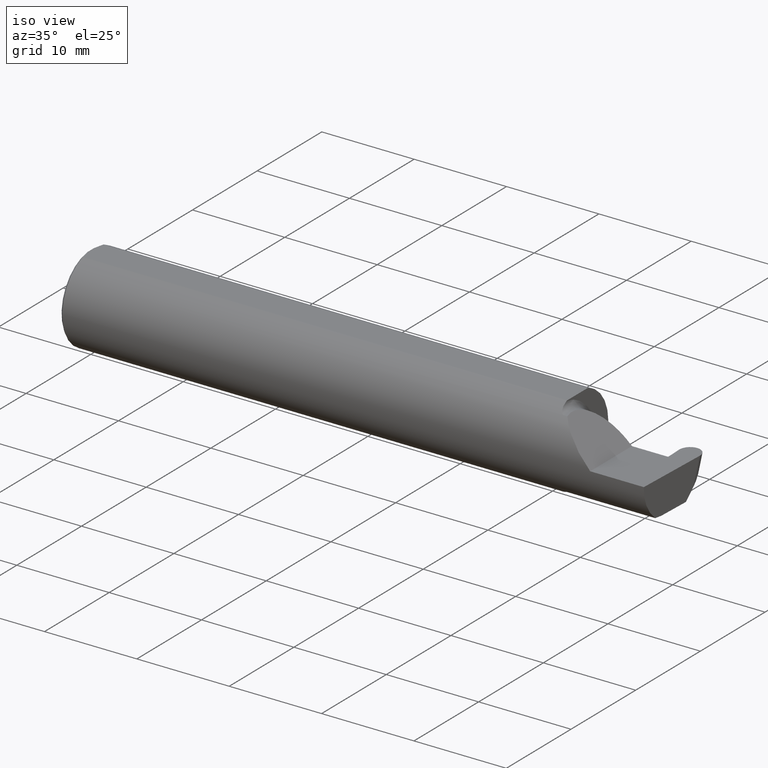
[diagram: clean part render]
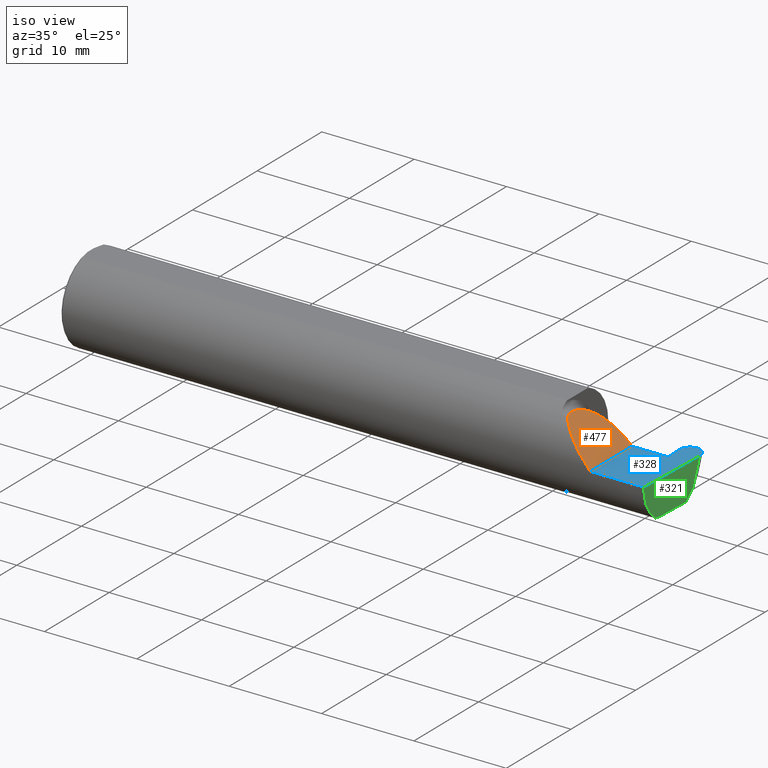
[diagram: same view with three faces highlighted in distinct colors, each labeled with its STEP entity id]
A machine part, iso view with three faces highlighted in distinct colors.
Their STEP definitions:

[orange] entity #477 — the highlighted planar face has unit normal (-0.7071, 0, -0.7071).
#19 = CARTESIAN_POINT ( 'NONE',  ( 2.260000000000000231, 0.06665000000000002867, 5.204748896376251932E-17 ) ) ;
#32 = ORIENTED_EDGE ( 'NONE', *, *, #543, .F. ) ;
#35 = AXIS2_PLACEMENT_3D ( 'NONE', #619, #74, #131 ) ;
#64 =( BOUNDED_CURVE ( )  B_SPLINE_CURVE ( 3, ( #124, #484, #375, #558 ),
 .UNSPECIFIED., .F., .T. ) 
 B_SPLINE_CURVE_WITH_KNOTS ( ( 4, 4 ),
 ( 6.055147272130142255, 7.853981633974482790 ),
 .UNSPECIFIED. ) 
 CURVE ( )  GEOMETRIC_REPRESENTATION_ITEM ( )  RATIONAL_B_SPLINE_CURVE ( ( 1.000000000000000000, 0.7480442670255268434, 0.7480442670255268434, 1.000000000000000000 ) ) 
 REPRESENTATION_ITEM ( '' )  );
#74 = DIRECTION ( 'NONE',  ( -0.7071067811865441310, 0.000000000000000000, -0.7071067811865510144 ) ) ;
#124 = CARTESIAN_POINT ( 'NONE',  ( 2.113883229301068312, -0.1172600179964006784, 0.1461167706989302539 ) ) ;
#127 = CARTESIAN_POINT ( 'NONE',  ( 2.202189699843949189, -0.1873500000000000998, 0.05781030015605102129 ) ) ;
#131 = DIRECTION ( 'NONE',  ( -0.7071067811865509034, 0.000000000000000000, 0.7071067811865440200 ) ) ;
#175 = CARTESIAN_POINT ( 'NONE',  ( 2.260000000000000231, -0.1873499999999999888, 2.939152317953647352E-17 ) ) ;
#250 = VERTEX_POINT ( 'NONE', #574 ) ;
#261 = VERTEX_POINT ( 'NONE', #19 ) ;
#266 = EDGE_LOOP ( 'NONE', ( #32, #310, #283 ) ) ;
#283 = ORIENTED_EDGE ( 'NONE', *, *, #487, .T. ) ;
#310 = ORIENTED_EDGE ( 'NONE', *, *, #412, .F. ) ;
#317 = VECTOR ( 'NONE', #488, 39.37007874015748143 ) ;
#326 = FACE_OUTER_BOUND ( 'NONE', #266, .T. ) ;
#338 = CARTESIAN_POINT ( 'NONE',  ( 2.150065971957465738, -0.1623470442677541759, 0.1099340280425336741 ) ) ;
#375 = CARTESIAN_POINT ( 'NONE',  ( 2.155331797197862720, 0.06665000000000004254, 0.1046682028021360955 ) ) ;
#377 = CARTESIAN_POINT ( 'NONE',  ( 2.113883229301068312, -0.1172600179964006784, 0.1461167706989302539 ) ) ;
#390 =( BOUNDED_CURVE ( )  B_SPLINE_CURVE ( 3, ( #175, #127, #338, #377 ),
 .UNSPECIFIED., .F., .T. ) 
 B_SPLINE_CURVE_WITH_KNOTS ( ( 4, 4 ),
 ( 4.712388980384688786, 5.606916381293136631 ),
 .UNSPECIFIED. ) 
 CURVE ( )  GEOMETRIC_REPRESENTATION_ITEM ( )  RATIONAL_B_SPLINE_CURVE ( ( 1.000000000000000000, 0.9344226172588802060, 0.9344226172588802060, 1.000000000000000000 ) ) 
 REPRESENTATION_ITEM ( '' )  );
#405 = VERTEX_POINT ( 'NONE', #526 ) ;
#412 = EDGE_CURVE ( 'NONE', #405, #250, #390, .T. ) ;
#445 = CARTESIAN_POINT ( 'NONE',  ( 2.260000000000000231, -0.2500000000000000555, 2.939152317953647352E-17 ) ) ;
#477 = ADVANCED_FACE ( 'NONE', ( #326 ), #707, .F. ) ;
#484 = CARTESIAN_POINT ( 'NONE',  ( 2.090221225029926355, -0.01530148607434163137, 0.1697787749700727100 ) ) ;
#487 = EDGE_CURVE ( 'NONE', #405, #261, #655, .T. ) ;
#488 = DIRECTION ( 'NONE',  ( -0.000000000000000000, 1.000000000000000000, -0.000000000000000000 ) ) ;
#526 = CARTESIAN_POINT ( 'NONE',  ( 2.260000000000000231, -0.1873499999999999888, 2.939152317953647352E-17 ) ) ;
#543 = EDGE_CURVE ( 'NONE', #250, #261, #64, .T. ) ;
#558 = CARTESIAN_POINT ( 'NONE',  ( 2.260000000000000231, 0.06665000000000002867, 5.204748896376251932E-17 ) ) ;
#574 = CARTESIAN_POINT ( 'NONE',  ( 2.113883229301068312, -0.1172600179964006784, 0.1461167706989302539 ) ) ;
#619 = CARTESIAN_POINT ( 'NONE',  ( 2.260000000000000231, -0.2500000000000000555, 2.939152317953647352E-17 ) ) ;
#655 = LINE ( 'NONE', #445, #317 ) ;
#707 = PLANE ( 'NONE',  #35 ) ;

[blue] entity #328 — the highlighted planar face has unit normal (-0, 0, -1).
#4 = VERTEX_POINT ( 'NONE', #648 ) ;
#5 = VECTOR ( 'NONE', #589, 39.37007874015748143 ) ;
#14 = CARTESIAN_POINT ( 'NONE',  ( 2.499906297085412898, 0.1370998259008695541, 0.000000000000000000 ) ) ;
#19 = CARTESIAN_POINT ( 'NONE',  ( 2.260000000000000231, 0.06665000000000002867, 5.204748896376251932E-17 ) ) ;
#34 = EDGE_CURVE ( 'NONE', #684, #104, #383, .T. ) ;
#45 = EDGE_CURVE ( 'NONE', #46, #203, #651, .T. ) ;
#46 = VERTEX_POINT ( 'NONE', #14 ) ;
#49 = VECTOR ( 'NONE', #444, 39.37007874015748143 ) ;
#75 = CARTESIAN_POINT ( 'NONE',  ( 2.456309424548497322, 0.1846500000000000363, 0.000000000000000000 ) ) ;
#79 = CARTESIAN_POINT ( 'NONE',  ( 2.410932386210230760, 0.1647912748130948291, 1.110789957736176039E-17 ) ) ;
#82 = CARTESIAN_POINT ( 'NONE',  ( 2.075000000000000178, 0.06665000000000002867, 5.204748896376251932E-17 ) ) ;
#96 = CARTESIAN_POINT ( 'NONE',  ( -0.001039370078740541395, 0.1846500000000000363, 0.000000000000000000 ) ) ;
#104 = VERTEX_POINT ( 'NONE', #556 ) ;
#107 = VECTOR ( 'NONE', #508, 39.37007874015748143 ) ;
#114 = DIRECTION ( 'NONE',  ( -1.000000000000000000, -0.000000000000000000, -0.000000000000000000 ) ) ;
#133 = VERTEX_POINT ( 'NONE', #603 ) ;
#134 = CARTESIAN_POINT ( 'NONE',  ( 2.414359555045604289, 0.06664999999999991764, 0.000000000000000000 ) ) ;
#139 = EDGE_CURVE ( 'NONE', #4, #405, #438, .T. ) ;
#141 = LINE ( 'NONE', #459, #510 ) ;
#155 = EDGE_CURVE ( 'NONE', #133, #104, #669, .T. ) ;
#169 = ORIENTED_EDGE ( 'NONE', *, *, #34, .F. ) ;
#171 = CARTESIAN_POINT ( 'NONE',  ( 2.411832552795360574, 0.1390138764844879860, 0.000000000000000000 ) ) ;
#174 = CARTESIAN_POINT ( 'NONE',  ( 3.749399456654646757E-32, -0.1873499999999999610, 3.061616997868383634E-16 ) ) ;
#183 = ORIENTED_EDGE ( 'NONE', *, *, #155, .T. ) ;
#193 = EDGE_CURVE ( 'NONE', #46, #4, #141, .T. ) ;
#196 = LINE ( 'NONE', #82, #107 ) ;
#203 = VERTEX_POINT ( 'NONE', #75 ) ;
#241 = LINE ( 'NONE', #134, #462 ) ;
#253 = CARTESIAN_POINT ( 'NONE',  ( 2.405238904245578624, 0.06664999999999991764, 0.000000000000000000 ) ) ;
#254 = ORIENTED_EDGE ( 'NONE', *, *, #650, .F. ) ;
#261 = VERTEX_POINT ( 'NONE', #19 ) ;
#272 = CARTESIAN_POINT ( 'NONE',  ( 2.499906297085412898, 0.1370998259008695541, 0.000000000000000000 ) ) ;
#275 = CARTESIAN_POINT ( 'NONE',  ( 2.500873303789769242, 0.1647912748130947180, 3.031548046095857169E-18 ) ) ;
#305 = DIRECTION ( 'NONE',  ( 1.000000000000000000, -0.000000000000000000, -0.000000000000000000 ) ) ;
#309 = DIRECTION ( 'NONE',  ( -1.224646799147353947E-16, 0.000000000000000000, -1.000000000000000000 ) ) ;
#312 = PLANE ( 'NONE',  #497 ) ;
#317 = VECTOR ( 'NONE', #488, 39.37007874015748143 ) ;
#328 = ADVANCED_FACE ( 'NONE', ( #428 ), #312, .F. ) ;
#340 = EDGE_LOOP ( 'NONE', ( #473, #183, #169, #254, #516, #628, #358, #350, #653 ) ) ;
#346 = CARTESIAN_POINT ( 'NONE',  ( 2.411899392914586659, 0.1370998259008695541, 0.000000000000000000 ) ) ;
#347 = VERTEX_POINT ( 'NONE', #253 ) ;
#350 = ORIENTED_EDGE ( 'NONE', *, *, #193, .F. ) ;
#358 = ORIENTED_EDGE ( 'NONE', *, *, #139, .F. ) ;
#361 = DIRECTION ( 'NONE',  ( -1.000000000000000000, 0.000000000000000000, 1.224646799147353947E-16 ) ) ;
#365 = LINE ( 'NONE', #96, #5 ) ;
#369 = EDGE_CURVE ( 'NONE', #133, #203, #365, .T. ) ;
#383 = LINE ( 'NONE', #171, #49 ) ;
#405 = VERTEX_POINT ( 'NONE', #526 ) ;
#428 = FACE_OUTER_BOUND ( 'NONE', #340, .T. ) ;
#438 = LINE ( 'NONE', #174, #675 ) ;
#444 = DIRECTION ( 'NONE',  ( -0.03489949670249400948, 0.9993908270190959842, -0.000000000000000000 ) ) ;
#445 = CARTESIAN_POINT ( 'NONE',  ( 2.260000000000000231, -0.2500000000000000555, 2.939152317953647352E-17 ) ) ;
#459 = CARTESIAN_POINT ( 'NONE',  ( 2.499973137204639428, 0.1390138764844880415, 0.000000000000000000 ) ) ;
#462 = VECTOR ( 'NONE', #305, 39.37007874015748143 ) ;
#463 = DIRECTION ( 'NONE',  ( -0.03489949670249319069, -0.9993908270190959842, 0.000000000000000000 ) ) ;
#473 = ORIENTED_EDGE ( 'NONE', *, *, #369, .F. ) ;
#487 = EDGE_CURVE ( 'NONE', #405, #261, #655, .T. ) ;
#488 = DIRECTION ( 'NONE',  ( -0.000000000000000000, 1.000000000000000000, -0.000000000000000000 ) ) ;
#490 = CARTESIAN_POINT ( 'NONE',  ( 2.456309424548497322, 0.1846500000000000363, 0.000000000000000000 ) ) ;
#497 = AXIS2_PLACEMENT_3D ( 'NONE', #584, #309, #361 ) ;
#508 = DIRECTION ( 'NONE',  ( 1.000000000000000000, 5.069406624455083742E-17, 0.000000000000000000 ) ) ;
#510 = VECTOR ( 'NONE', #463, 39.37007874015748854 ) ;
#516 = ORIENTED_EDGE ( 'NONE', *, *, #614, .F. ) ;
#517 = CARTESIAN_POINT ( 'NONE',  ( 2.414359555045604289, 0.06664999999999991764, 0.000000000000000000 ) ) ;
#526 = CARTESIAN_POINT ( 'NONE',  ( 2.260000000000000231, -0.1873499999999999888, 2.939152317953647352E-17 ) ) ;
#549 = CARTESIAN_POINT ( 'NONE',  ( 2.455496265451502236, 0.1846500000000000363, 0.000000000000000000 ) ) ;
#554 = CARTESIAN_POINT ( 'NONE',  ( 2.482665624698748186, 0.1846499999999999253, 5.261345637967953601E-18 ) ) ;
#556 = CARTESIAN_POINT ( 'NONE',  ( 2.411899392914586659, 0.1370998259008695541, 0.000000000000000000 ) ) ;
#563 = CARTESIAN_POINT ( 'NONE',  ( 2.429140065301251372, 0.1846500000000001473, 8.878101985489642774E-18 ) ) ;
#584 = CARTESIAN_POINT ( 'NONE',  ( 2.500000000000000000, -0.2500000000000000555, 0.000000000000000000 ) ) ;
#589 = DIRECTION ( 'NONE',  ( 1.000000000000000000, -0.000000000000000000, -0.000000000000000000 ) ) ;
#603 = CARTESIAN_POINT ( 'NONE',  ( 2.455496265451502236, 0.1846500000000000363, 0.000000000000000000 ) ) ;
#614 = EDGE_CURVE ( 'NONE', #261, #347, #196, .T. ) ;
#628 = ORIENTED_EDGE ( 'NONE', *, *, #487, .F. ) ;
#648 = CARTESIAN_POINT ( 'NONE',  ( 2.488576259503493926, -0.1873499999999999888, 0.000000000000000000 ) ) ;
#650 = EDGE_CURVE ( 'NONE', #347, #684, #241, .T. ) ;
#651 =( BOUNDED_CURVE ( )  B_SPLINE_CURVE ( 3, ( #272, #275, #554, #490 ),
 .UNSPECIFIED., .F., .F. ) 
 B_SPLINE_CURVE_WITH_KNOTS ( ( 4, 4 ),
 ( 1.627103621474502049, 3.225696776093220475 ),
 .UNSPECIFIED. ) 
 CURVE ( )  GEOMETRIC_REPRESENTATION_ITEM ( )  RATIONAL_B_SPLINE_CURVE ( ( 1.000000000000000000, 0.7981407609938095948, 0.7981407609938095948, 1.000000000000000000 ) ) 
 REPRESENTATION_ITEM ( '' )  );
#653 = ORIENTED_EDGE ( 'NONE', *, *, #45, .T. ) ;
#655 = LINE ( 'NONE', #445, #317 ) ;
#669 =( BOUNDED_CURVE ( )  B_SPLINE_CURVE ( 3, ( #549, #563, #79, #346 ),
 .UNSPECIFIED., .F., .T. ) 
 B_SPLINE_CURVE_WITH_KNOTS ( ( 4, 4 ),
 ( 3.057488531086357764, 4.656081685705083295 ),
 .UNSPECIFIED. ) 
 CURVE ( )  GEOMETRIC_REPRESENTATION_ITEM ( )  RATIONAL_B_SPLINE_CURVE ( ( 1.000000000000000000, 0.7981407609938078185, 0.7981407609938078185, 1.000000000000000000 ) ) 
 REPRESENTATION_ITEM ( '' )  );
#675 = VECTOR ( 'NONE', #114, 39.37007874015748143 ) ;
#684 = VERTEX_POINT ( 'NONE', #517 ) ;

[green] entity #321 — the highlighted planar face has unit normal (-0.9992, 0.0349, 0.0175).
#4 = VERTEX_POINT ( 'NONE', #648 ) ;
#14 = CARTESIAN_POINT ( 'NONE',  ( 2.499906297085412898, 0.1370998259008695541, 0.000000000000000000 ) ) ;
#22 = VECTOR ( 'NONE', #610, 39.37007874015748854 ) ;
#23 = CARTESIAN_POINT ( 'NONE',  ( 2.488815404197634251, -0.1061291577212408049, -0.1486999626928446339 ) ) ;
#27 = CARTESIAN_POINT ( 'NONE',  ( 2.496782013450319582, 0.1018667288808076665, -0.1084363226623427101 ) ) ;
#46 = VERTEX_POINT ( 'NONE', #14 ) ;
#55 = DIRECTION ( 'NONE',  ( -0.03489949670249319069, -0.9993908270190959842, 0.000000000000000000 ) ) ;
#62 = EDGE_CURVE ( 'NONE', #84, #590, #170, .T. ) ;
#66 = CARTESIAN_POINT ( 'NONE',  ( 2.497044125482537957, 0.1068701584290903256, -0.1034328931140599817 ) ) ;
#68 = EDGE_CURVE ( 'NONE', #621, #84, #331, .T. ) ;
#71 = EDGE_CURVE ( 'NONE', #621, #46, #611, .T. ) ;
#84 = VERTEX_POINT ( 'NONE', #492 ) ;
#103 = DIRECTION ( 'NONE',  ( -0.9992386149554828290, 0.03489418134010589118, 0.01745240643728358451 ) ) ;
#120 = CARTESIAN_POINT ( 'NONE',  ( 2.489884857891535574, -0.07485379416751689052, -0.1500000000000000500 ) ) ;
#123 = CARTESIAN_POINT ( 'NONE',  ( 2.499922542640338197, 0.1372830298860648612, 0.0005638438891804186011 ) ) ;
#141 = LINE ( 'NONE', #459, #510 ) ;
#147 = CARTESIAN_POINT ( 'NONE',  ( 2.489588163846105484, -0.08335000000000003517, -0.1500000000000000500 ) ) ;
#156 = FACE_OUTER_BOUND ( 'NONE', #542, .T. ) ;
#170 = LINE ( 'NONE', #120, #191 ) ;
#185 = ORIENTED_EDGE ( 'NONE', *, *, #635, .T. ) ;
#186 = CARTESIAN_POINT ( 'NONE',  ( 2.487566561880238947, -0.1873499999999999610, -0.05781030015605118089 ) ) ;
#191 = VECTOR ( 'NONE', #226, 39.37007874015748143 ) ;
#192 = CARTESIAN_POINT ( 'NONE',  ( 2.488471823259917226, -0.1172600179964005951, -0.1461167706989303927 ) ) ;
#193 = EDGE_CURVE ( 'NONE', #46, #4, #141, .T. ) ;
#201 =( BOUNDED_CURVE ( )  B_SPLINE_CURVE ( 3, ( #577, #401, #186, #298 ),
 .UNSPECIFIED., .F., .F. ) 
 B_SPLINE_CURVE_WITH_KNOTS ( ( 4, 4 ),
 ( 5.852427379562185727, 6.746954780470634461 ),
 .UNSPECIFIED. ) 
 CURVE ( )  GEOMETRIC_REPRESENTATION_ITEM ( )  RATIONAL_B_SPLINE_CURVE ( ( 1.000000000000000000, 0.9344226172588800949, 0.9344226172588800949, 1.000000000000000000 ) ) 
 REPRESENTATION_ITEM ( '' )  );
#226 = DIRECTION ( 'NONE',  ( -0.03489949670249319069, -0.9993908270190959842, 0.000000000000000000 ) ) ;
#248 = CARTESIAN_POINT ( 'NONE',  ( 2.489189135516857831, -0.09477667630339410565, -0.1500000000000000500 ) ) ;
#265 = CARTESIAN_POINT ( 'NONE',  ( 2.499973137204639428, 0.1390138764844880415, 0.000000000000000000 ) ) ;
#279 = DIRECTION ( 'NONE',  ( 0.02739170151059986541, 0.3089010440752013031, 0.9506996579664918068 ) ) ;
#298 = CARTESIAN_POINT ( 'NONE',  ( 2.488576259503493926, -0.1873499999999999888, 0.000000000000000000 ) ) ;
#321 = ADVANCED_FACE ( 'NONE', ( #156 ), #408, .F. ) ;
#331 = LINE ( 'NONE', #66, #22 ) ;
#342 =( BOUNDED_CURVE ( )  B_SPLINE_CURVE ( 3, ( #192, #23, #248, #147 ),
 .UNSPECIFIED., .F., .F. ) 
 B_SPLINE_CURVE_WITH_KNOTS ( ( 4, 4 ),
 ( 0.8789888184544064620, 1.107026853503849440 ),
 .UNSPECIFIED. ) 
 CURVE ( )  GEOMETRIC_REPRESENTATION_ITEM ( )  RATIONAL_B_SPLINE_CURVE ( ( 1.000000000000000000, 0.9956712472009929815, 0.9956712472009929815, 1.000000000000000000 ) ) 
 REPRESENTATION_ITEM ( '' )  );
#355 = CARTESIAN_POINT ( 'NONE',  ( 2.488471823259917226, -0.1172600179964005951, -0.1461167706989303927 ) ) ;
#401 = CARTESIAN_POINT ( 'NONE',  ( 2.487529306701961485, -0.1623470442677540093, -0.1099340280425339378 ) ) ;
#408 = PLANE ( 'NONE',  #626 ) ;
#432 = ORIENTED_EDGE ( 'NONE', *, *, #62, .F. ) ;
#456 = ORIENTED_EDGE ( 'NONE', *, *, #588, .F. ) ;
#459 = CARTESIAN_POINT ( 'NONE',  ( 2.499973137204639428, 0.1390138764844880415, 0.000000000000000000 ) ) ;
#463 = DIRECTION ( 'NONE',  ( -0.03489949670249319069, -0.9993908270190959842, 0.000000000000000000 ) ) ;
#492 = CARTESIAN_POINT ( 'NONE',  ( 2.494604638945828956, 0.06030305154315081240, -0.1500000000000000222 ) ) ;
#510 = VECTOR ( 'NONE', #463, 39.37007874015748854 ) ;
#542 = EDGE_LOOP ( 'NONE', ( #643, #599, #545, #456, #185, #432 ) ) ;
#545 = ORIENTED_EDGE ( 'NONE', *, *, #193, .T. ) ;
#577 = CARTESIAN_POINT ( 'NONE',  ( 2.488471823259917226, -0.1172600179964005951, -0.1461167706989303927 ) ) ;
#585 = VERTEX_POINT ( 'NONE', #355 ) ;
#588 = EDGE_CURVE ( 'NONE', #585, #4, #201, .T. ) ;
#590 = VERTEX_POINT ( 'NONE', #625 ) ;
#599 = ORIENTED_EDGE ( 'NONE', *, *, #71, .T. ) ;
#610 = DIRECTION ( 'NONE',  ( -0.03701744261649742712, -0.7066221440565398915, -0.7066221440565478851 ) ) ;
#611 = LINE ( 'NONE', #123, #664 ) ;
#621 = VERTEX_POINT ( 'NONE', #27 ) ;
#625 = CARTESIAN_POINT ( 'NONE',  ( 2.489588163846105484, -0.08335000000000003517, -0.1500000000000000500 ) ) ;
#626 = AXIS2_PLACEMENT_3D ( 'NONE', #265, #103, #55 ) ;
#635 = EDGE_CURVE ( 'NONE', #585, #590, #342, .T. ) ;
#643 = ORIENTED_EDGE ( 'NONE', *, *, #68, .F. ) ;
#648 = CARTESIAN_POINT ( 'NONE',  ( 2.488576259503493926, -0.1873499999999999888, 0.000000000000000000 ) ) ;
#664 = VECTOR ( 'NONE', #279, 39.37007874015748854 ) ;